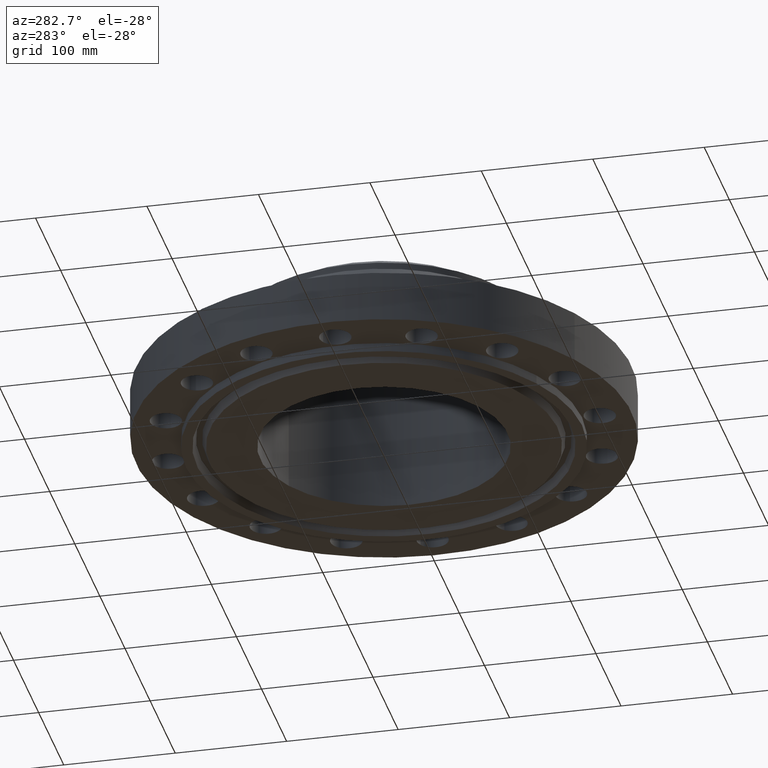
[diagram: clean part render]
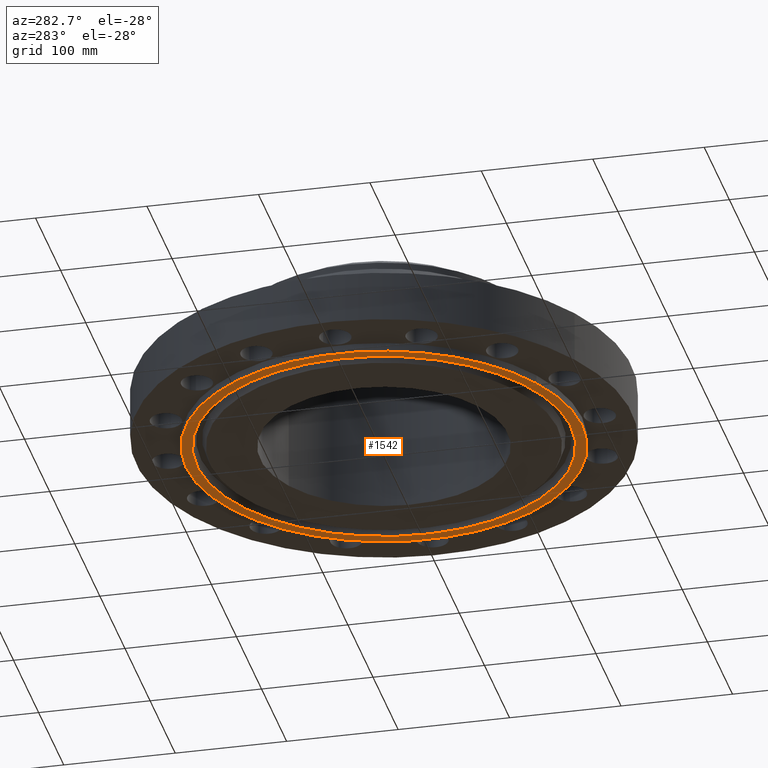
[diagram: same view with one face highlighted and labeled with its STEP entity id]
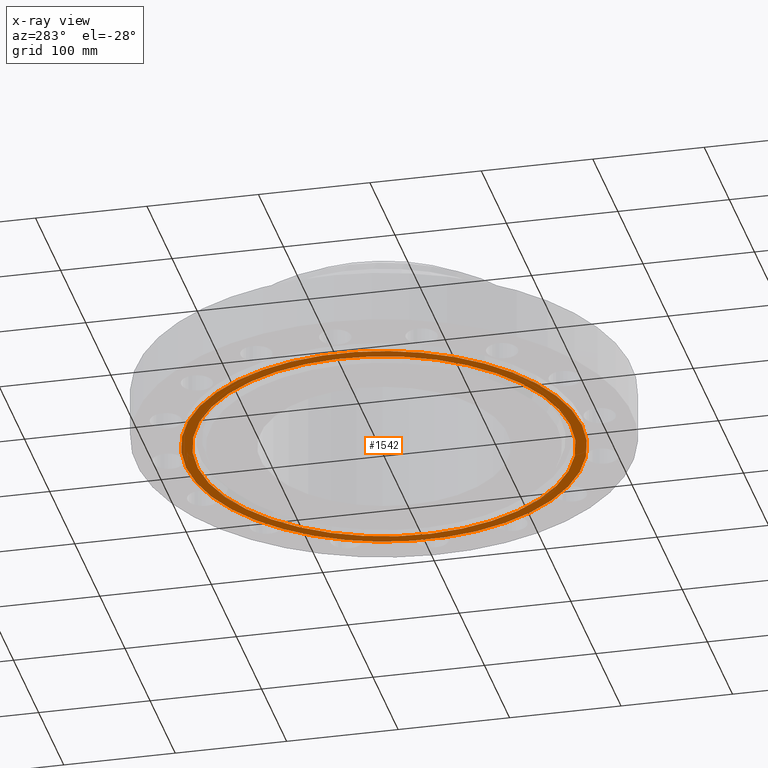
[diagram: x-ray of the same camera — body ghosted, the highlighted face saturated]
A machine part, auxiliary view. The second image highlights one B-rep face of the part: STEP entity #1542.
The next image is the same camera in x-ray: the body ghosted, the highlighted face saturated — about 0% of this face is hidden behind the body in this view.
In plain terms, the highlighted planar face has unit normal (0, 0, -1).
Its self-contained STEP definition (entity closure, byte-faithful):
#532=AXIS2_PLACEMENT_3D('Circle Axis2P3D',#530,#531,$) ;
#567=AXIS2_PLACEMENT_3D('Circle Axis2P3D',#565,#566,$) ;
#1518=AXIS2_PLACEMENT_3D('Plane Axis2P3D',#1515,#1516,#1517) ;
#1526=AXIS2_PLACEMENT_3D('Circle Axis2P3D',#1524,#1525,$) ;
#1535=AXIS2_PLACEMENT_3D('Circle Axis2P3D',#1533,#1534,$) ;
#530=CARTESIAN_POINT('Axis2P3D Location',(0.,0.,-0.313000000001)) ;
#534=CARTESIAN_POINT('Vertex',(-3.35597877024,-6.14307793326,-0.313000000001)) ;
#536=CARTESIAN_POINT('Vertex',(3.35597877024,6.14307793326,-0.313000000001)) ;
#565=CARTESIAN_POINT('Axis2P3D Location',(0.,0.,-0.313000000001)) ;
#1515=CARTESIAN_POINT('Axis2P3D Location',(0.,4.37500000002,-0.313000000001)) ;
#1524=CARTESIAN_POINT('Axis2P3D Location',(-8.39223703654E-016,-1.1189649382E-015,-0.313000000001)) ;
#1528=CARTESIAN_POINT('Vertex',(3.16876309742,-5.80038194284,-0.313000000001)) ;
#1530=CARTESIAN_POINT('Vertex',(-3.16876309742,5.80038194284,-0.313000000001)) ;
#1533=CARTESIAN_POINT('Axis2P3D Location',(0.,-5.59482469102E-016,-0.313000000001)) ;
#531=DIRECTION('Axis2P3D Direction',(0.,0.,-0.0393700787402)) ;
#566=DIRECTION('Axis2P3D Direction',(0.,0.,-0.0393700787402)) ;
#1516=DIRECTION('Axis2P3D Direction',(0.,0.,-0.0393700787402)) ;
#1517=DIRECTION('Axis2P3D XDirection',(0.0393700787402,0.,0.)) ;
#1525=DIRECTION('Axis2P3D Direction',(0.,0.,-0.0393700787402)) ;
#1534=DIRECTION('Axis2P3D Direction',(0.,0.,-0.0393700787402)) ;
#1521=ORIENTED_EDGE('',*,*,#538,.T.) ;
#1522=ORIENTED_EDGE('',*,*,#569,.T.) ;
#1539=ORIENTED_EDGE('',*,*,#1532,.F.) ;
#1540=ORIENTED_EDGE('',*,*,#1537,.F.) ;
#1541=FACE_BOUND('',#1538,.T.) ;
#1542=ADVANCED_FACE('PartBody',(#1523,#1541),#1519,.T.) ;
#533=CIRCLE('generated circle',#532,7.00000000003) ;
#568=CIRCLE('generated circle',#567,7.00000000003) ;
#1527=CIRCLE('generated circle',#1526,6.60950000003) ;
#1536=CIRCLE('generated circle',#1535,6.60950000003) ;
#538=EDGE_CURVE('',#535,#537,#533,.T.) ;
#569=EDGE_CURVE('',#537,#535,#568,.T.) ;
#1532=EDGE_CURVE('',#1529,#1531,#1527,.T.) ;
#1537=EDGE_CURVE('',#1531,#1529,#1536,.T.) ;
#1520=EDGE_LOOP('',(#1521,#1522)) ;
#1538=EDGE_LOOP('',(#1539,#1540)) ;
#1523=FACE_OUTER_BOUND('',#1520,.T.) ;
#1519=PLANE('',#1518) ;
#535=VERTEX_POINT('',#534) ;
#537=VERTEX_POINT('',#536) ;
#1529=VERTEX_POINT('',#1528) ;
#1531=VERTEX_POINT('',#1530) ;